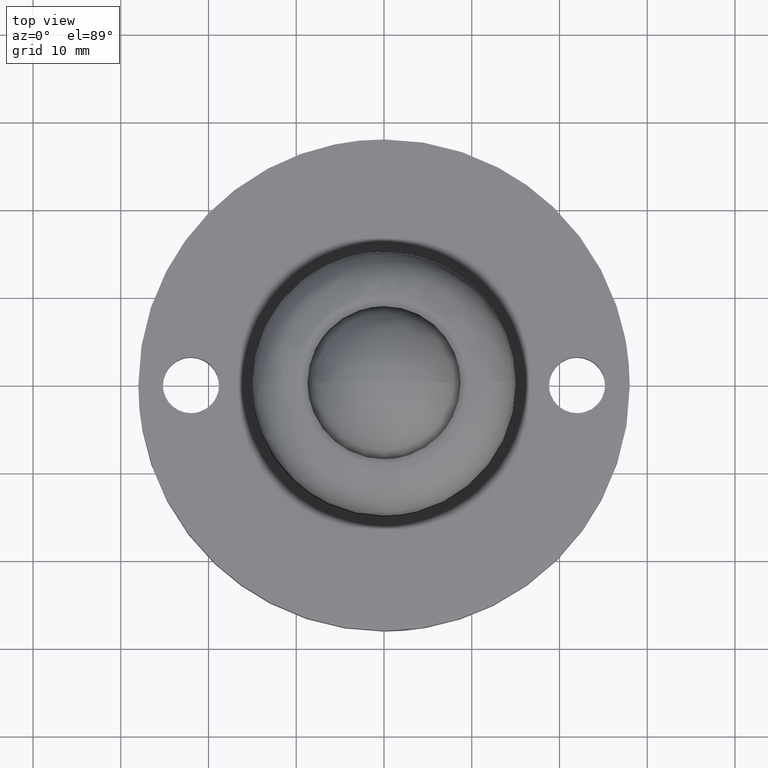
[diagram: clean part render]
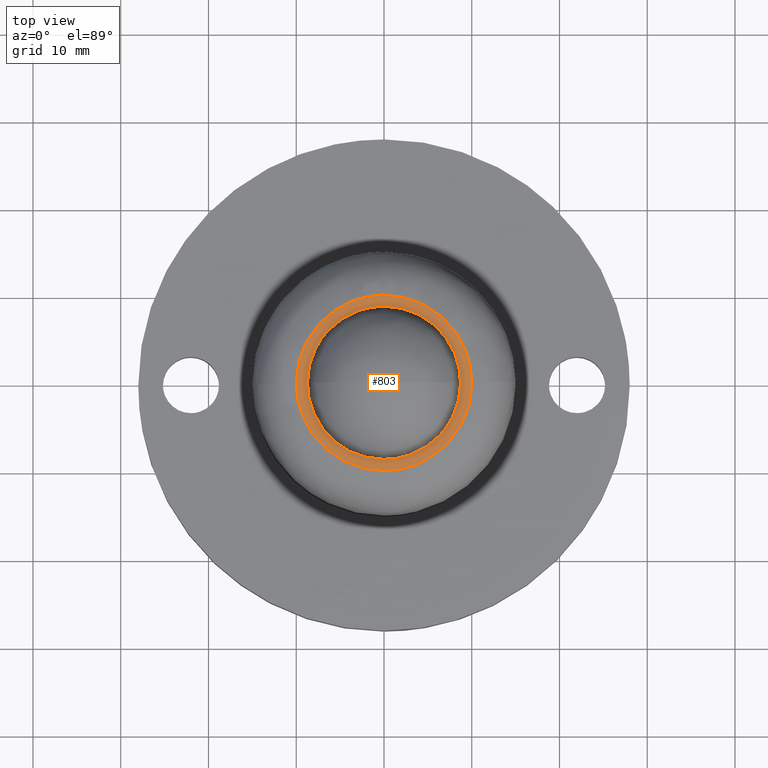
[diagram: same view with one face highlighted and labeled with its STEP entity id]
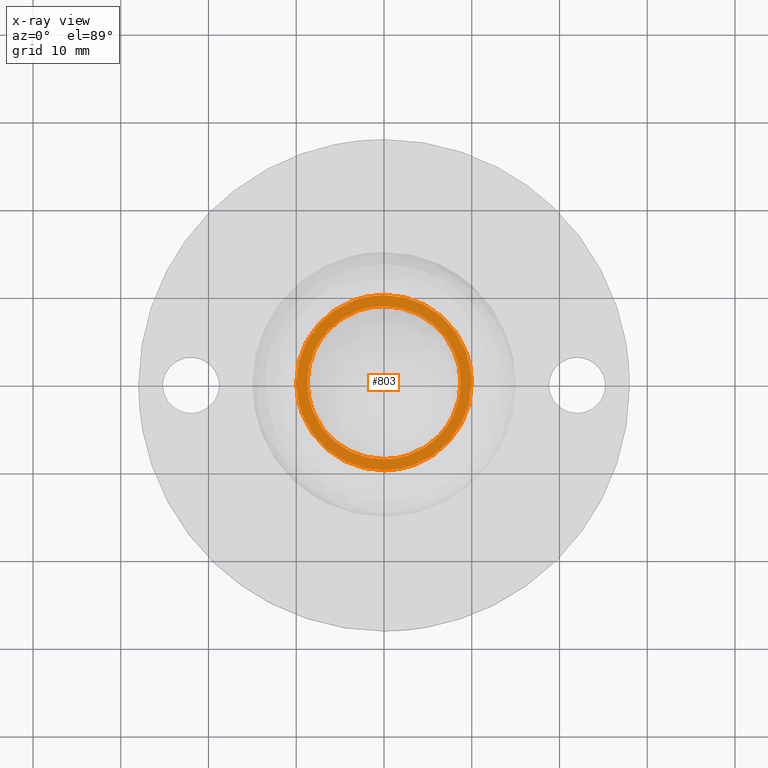
[diagram: x-ray of the same camera — body ghosted, the highlighted face saturated]
A machine part, top view. The second image highlights one B-rep face of the part: STEP entity #803.
The next image is the same camera in x-ray: the body ghosted, the highlighted face saturated — about 0% of this face is hidden behind the body in this view.
In plain terms, the highlighted face is a freeform B-spline surface patch.
Its self-contained STEP definition (entity closure, byte-faithful):
#578=CARTESIAN_POINT('',(6.327618083634519,-6.004685373669587,21.0));
#579=VERTEX_POINT('',#578);
#585=CARTESIAN_POINT('',(8.723244809129101,0.0,21.0));
#586=VERTEX_POINT('',#585);
#587=CARTESIAN_POINT('',(8.723244809129101,0.0,21.0));
#588=CARTESIAN_POINT('',(8.723332572390362,-0.586404979604794,21.000000000000028));
#589=CARTESIAN_POINT('',(8.621977730987004,-1.586697987719995,20.999999999999979));
#590=CARTESIAN_POINT('',(8.277166769243088,-2.818872504536087,21.000000000000021));
#591=CARTESIAN_POINT('',(7.842368233473377,-3.872254753578321,21.0));
#592=CARTESIAN_POINT('',(7.244876099076167,-4.925453301302267,20.999999999999979));
#593=CARTESIAN_POINT('',(6.660065241605389,-5.654416673220995,21.000000000000060));
#594=CARTESIAN_POINT('',(6.327618083634519,-6.004685373669587,21.0));
#595=B_SPLINE_CURVE_WITH_KNOTS('',3,(#587,#588,#589,#590,#591,#592,#593,#594),.UNSPECIFIED.,.F.,.U.,(4,1,1,1,1,4),(4.893895E-009,1.759204887722996,3.000998700661407,3.828850269999971,5.174131045733117,6.622885219076257),.UNSPECIFIED.);
#596=EDGE_CURVE('',#586,#579,#595,.T.);
#598=CARTESIAN_POINT('',(0.000000677488244,8.723244809129076,21.0));
#599=VERTEX_POINT('',#598);
#600=CARTESIAN_POINT('',(0.000000677488244,8.723244809129076,21.0));
#601=CARTESIAN_POINT('',(0.677993327680909,8.723399677154822,21.0));
#602=CARTESIAN_POINT('',(1.855485320217444,8.585242979676366,21.000000000000011));
#603=CARTESIAN_POINT('',(3.249787261453395,8.124592676812970,21.000000000000011));
#604=CARTESIAN_POINT('',(4.309302412451532,7.607449376546779,20.999999999999989));
#605=CARTESIAN_POINT('',(5.152049641195379,7.066517747434650,21.000000000000011));
#606=CARTESIAN_POINT('',(6.031598426387102,6.335606036334618,20.999999999999979));
#607=CARTESIAN_POINT('',(6.932664777246647,5.365711702309681,21.000000000000021));
#608=CARTESIAN_POINT('',(7.675681681773593,4.223631990809971,20.999999999999709));
#609=CARTESIAN_POINT('',(8.284155452857238,2.850877385782032,21.000000000001780));
#610=CARTESIAN_POINT('',(8.640560487426843,1.498707302535643,20.999999999994760));
#611=CARTESIAN_POINT('',(8.723264826576122,0.463876126279452,21.000000000007319));
#612=CARTESIAN_POINT('',(8.723244809129101,0.0,21.0));
#613=B_SPLINE_CURVE_WITH_KNOTS('',3,(#600,#601,#602,#603,#604,#605,#606,#607,#608,#609,#610,#611,#612),.UNSPECIFIED.,.F.,.U.,(4,1,1,1,1,1,1,1,1,1,4),(0.000114911370678,2.034065035391663,3.532769473584480,4.389176361845705,5.566737302561650,6.530181053071281,7.814751181571909,9.527562128002327,10.598072060405510,12.310886082825590,13.702519446926420),.UNSPECIFIED.);
#614=EDGE_CURVE('',#599,#586,#613,.T.);
#616=CARTESIAN_POINT('',(-6.327618083634496,6.004685373669567,21.0));
#617=VERTEX_POINT('',#616);
#618=CARTESIAN_POINT('',(-6.327618083634496,6.004685373669567,21.0));
#619=CARTESIAN_POINT('',(-5.959618270213363,6.392547860276998,21.000000000000011));
#620=CARTESIAN_POINT('',(-5.179844200784878,7.075870020467312,20.999999999999989));
#621=CARTESIAN_POINT('',(-4.038576107575969,7.763258624045899,21.0));
#622=CARTESIAN_POINT('',(-2.953051055601981,8.229595625163382,20.999999999999979));
#623=CARTESIAN_POINT('',(-1.677673289793570,8.608143465085682,21.000000000000210));
#624=CARTESIAN_POINT('',(-0.645286582443802,8.723366766376644,20.999999999999851));
#625=CARTESIAN_POINT('',(0.000000677488244,8.723244809129076,21.0));
#626=B_SPLINE_CURVE_WITH_KNOTS('',3,(#618,#619,#620,#621,#622,#623,#624,#625),.UNSPECIFIED.,.F.,.U.,(4,1,1,1,1,4),(0.000000013996203,1.603973144661284,3.097334097284104,3.982272836184685,5.143776597404555,7.079606919482530),.UNSPECIFIED.);
#627=EDGE_CURVE('',#617,#599,#626,.T.);
#657=CARTESIAN_POINT('',(-8.723244809129101,0.0,21.0));
#658=VERTEX_POINT('',#657);
#659=CARTESIAN_POINT('',(-8.723244809129101,0.0,21.0));
#660=CARTESIAN_POINT('',(-8.723333335380271,0.586405526445085,21.000000000000011));
#661=CARTESIAN_POINT('',(-8.621960136813584,1.586689007657569,20.999999999999979));
#662=CARTESIAN_POINT('',(-8.174766522205951,3.185251661157009,21.000000000000039));
#663=CARTESIAN_POINT('',(-7.455238342538174,4.649527068365380,20.999999999999972));
#664=CARTESIAN_POINT('',(-6.707556698060090,5.604381527280507,21.000000000000011));
#665=CARTESIAN_POINT('',(-6.327618083634496,6.004685373669567,21.0));
#666=B_SPLINE_CURVE_WITH_KNOTS('',3,(#659,#660,#661,#662,#663,#664,#665),.UNSPECIFIED.,.F.,.U.,(4,1,1,1,4),(4.894256E-009,1.759204887723136,3.000998700661433,4.967163915533622,6.622885219076245),.UNSPECIFIED.);
#667=EDGE_CURVE('',#658,#617,#666,.T.);
#669=CARTESIAN_POINT('',(-0.000000677488121,-8.723244809129074,21.0));
#670=VERTEX_POINT('',#669);
#671=CARTESIAN_POINT('',(-0.000000677488121,-8.723244809129074,21.0));
#672=CARTESIAN_POINT('',(-0.677997593391225,-8.723408748233753,20.999999999999989));
#673=CARTESIAN_POINT('',(-1.784111252685164,-8.593593179911899,21.000000000000039));
#674=CARTESIAN_POINT('',(-3.114369999449512,-8.172114868307807,20.999999999999979));
#675=CARTESIAN_POINT('',(-4.348726841347537,-7.606849268163112,20.999999999999879));
#676=CARTESIAN_POINT('',(-5.423340599801701,-6.888811543555472,21.000000000000050));
#677=CARTESIAN_POINT('',(-6.407173310033868,-5.951959022299822,20.999999999999929));
#678=CARTESIAN_POINT('',(-7.042197697601449,-5.178172637674443,21.000000000000199));
#679=CARTESIAN_POINT('',(-7.743685522432476,-4.100135583757065,20.999999999998970));
#680=CARTESIAN_POINT('',(-8.296514519899178,-2.852915367895867,21.000000000002981));
#681=CARTESIAN_POINT('',(-8.651906289429798,-1.355949118957813,20.999999999993591));
#682=CARTESIAN_POINT('',(-8.723275416893648,-0.463879590355535,21.000000000014278));
#683=CARTESIAN_POINT('',(-8.723244809129101,0.0,21.0));
#684=B_SPLINE_CURVE_WITH_KNOTS('',3,(#671,#672,#673,#674,#675,#676,#677,#678,#679,#680,#681,#682,#683),.UNSPECIFIED.,.F.,.U.,(4,1,1,1,1,1,1,1,1,1,4),(0.000114911370609,2.034065035391667,3.318668188879252,4.175074413055592,6.101987931380429,7.172458378674438,8.242952056606633,9.099358296362770,11.026276011511410,12.310886082825590,13.702519446926480),.UNSPECIFIED.);
#685=EDGE_CURVE('',#670,#658,#684,.T.);
#687=CARTESIAN_POINT('',(6.327618083634519,-6.004685373669587,21.0));
#688=CARTESIAN_POINT('',(6.048431361582376,-6.298907246129039,20.999999999999989));
#689=CARTESIAN_POINT('',(5.421670539238378,-6.873291077378390,21.000000000000011));
#690=CARTESIAN_POINT('',(4.381143408174281,-7.579071328345361,21.000000000000021));
#691=CARTESIAN_POINT('',(3.199696410004737,-8.150032788639377,20.999999999999950));
#692=CARTESIAN_POINT('',(1.751416441136674,-8.599914814410603,21.000000000000011));
#693=CARTESIAN_POINT('',(0.645286159092319,-8.723370802553383,21.000000000000011));
#694=CARTESIAN_POINT('',(-0.000000677488121,-8.723244809129074,21.0));
#695=B_SPLINE_CURVE_WITH_KNOTS('',3,(#687,#688,#689,#690,#691,#692,#693,#694),.UNSPECIFIED.,.F.,.U.,(4,1,1,1,1,4),(0.000000013997815,1.216802676635811,2.544239843362114,3.761037250918299,5.143776597404981,7.079606919482406),.UNSPECIFIED.);
#696=EDGE_CURVE('',#579,#670,#695,.T.);
#704=CARTESIAN_POINT('',(-10.998999961235899,-10.998783032706690,21.0));
#705=CARTESIAN_POINT('',(10.999000497677700,-10.998783032706690,21.0));
#706=CARTESIAN_POINT('',(-10.998999961235899,10.998783569137920,21.0));
#707=CARTESIAN_POINT('',(10.999000497677700,10.998783569137920,21.0));
#708=B_SPLINE_SURFACE_WITH_KNOTS('',1,1,((#704,#706),(#705,#707)),.UNSPECIFIED.,.F.,.F.,.U.,(2,2),(2,2),(0.0,21.998000458913602),(0.0,21.997566601844611),.UNSPECIFIED.);
#709=CARTESIAN_POINT('',(-9.999210443095326,-0.125660399110086,21.0));
#710=VERTEX_POINT('',#709);
#711=CARTESIAN_POINT('',(-9.999999999999799,0.0,21.0));
#712=VERTEX_POINT('',#711);
#713=CARTESIAN_POINT('',(-9.999210443095326,-0.125660399110086,21.0));
#714=CARTESIAN_POINT('',(-9.999999999999799,0.0,21.0));
#715=QUASI_UNIFORM_CURVE('',1,(#713,#714),.UNSPECIFIED.,.F.,.U.);
#716=EDGE_CURVE('',#710,#712,#715,.T.);
#717=ORIENTED_EDGE('',*,*,#716,.F.);
#718=CARTESIAN_POINT('',(0.062805054344614,-9.999802774315672,21.0));
#719=VERTEX_POINT('',#718);
#720=CARTESIAN_POINT('',(0.062805054344614,-9.999802774315672,21.0));
#721=CARTESIAN_POINT('',(-0.813177316599174,-10.005611807915180,21.000000000000011));
#722=CARTESIAN_POINT('',(-2.240137805728252,-9.825584995934372,20.999999999999961));
#723=CARTESIAN_POINT('',(-4.245028264484744,-9.118679754629701,21.000000000000121));
#724=CARTESIAN_POINT('',(-5.715664766248270,-8.266019202241598,20.999999999999680));
#725=CARTESIAN_POINT('',(-7.062549182978366,-7.139480367335418,21.000000000000711));
#726=CARTESIAN_POINT('',(-8.109148617273645,-5.935038905590992,20.999999999999570));
#727=CARTESIAN_POINT('',(-8.913272797161460,-4.606307559138471,21.000000000000551));
#728=CARTESIAN_POINT('',(-9.418327271868757,-3.423861902667085,20.999999999999819));
#729=CARTESIAN_POINT('',(-9.850949381412008,-1.977667107635396,21.000000000000131));
#730=CARTESIAN_POINT('',(-9.989891004483095,-0.879353541175013,20.999999999999929));
#731=CARTESIAN_POINT('',(-9.999210443095326,-0.125660399110086,21.0));
#732=B_SPLINE_CURVE_WITH_KNOTS('',3,(#720,#721,#722,#723,#724,#725,#726,#727,#728,#729,#730,#731),.UNSPECIFIED.,.F.,.U.,(4,1,1,1,1,1,1,1,1,4),(0.000000047510442,2.627890225191633,4.277968296809620,6.355845185855008,7.700348531167800,9.533736820823030,11.122706289565389,12.344987796700931,13.383924157297240,15.645129376216531),.UNSPECIFIED.);
#733=EDGE_CURVE('',#719,#710,#732,.T.);
#734=ORIENTED_EDGE('',*,*,#733,.F.);
#735=CARTESIAN_POINT('',(9.999999999999799,0.0,21.0));
#736=VERTEX_POINT('',#735);
#737=CARTESIAN_POINT('',(9.999999999999799,0.0,21.0));
#738=CARTESIAN_POINT('',(10.000003490425980,-0.427790089742249,21.000000000000011));
#739=CARTESIAN_POINT('',(9.933282028173654,-1.466732670302480,20.999999999999979));
#740=CARTESIAN_POINT('',(9.602922146305694,-2.944057803672374,21.000000000000050));
#741=CARTESIAN_POINT('',(8.971096966647487,-4.516926613015439,20.999999999999851));
#742=CARTESIAN_POINT('',(8.198310368174633,-5.794780078665727,21.000000000000171));
#743=CARTESIAN_POINT('',(7.216039979824836,-6.968749764925461,20.999999999999460));
#744=CARTESIAN_POINT('',(6.096127918859487,-7.984408327194137,21.000000000000281));
#745=CARTESIAN_POINT('',(4.634102803416174,-8.924843047394088,21.000000000000309));
#746=CARTESIAN_POINT('',(3.005242958625298,-9.591029212677146,21.000000000000089));
#747=CARTESIAN_POINT('',(1.447629749438859,-9.929589153354248,20.999999999999851));
#748=CARTESIAN_POINT('',(0.490586444072640,-9.997125353850032,21.000000000000089));
#749=CARTESIAN_POINT('',(0.062805054344614,-9.999802774315672,21.0));
#750=B_SPLINE_CURVE_WITH_KNOTS('',3,(#737,#738,#739,#740,#741,#742,#743,#744,#745,#746,#747,#748,#749),.UNSPECIFIED.,.F.,.U.,(4,1,1,1,1,1,1,1,1,1,4),(0.000000047499384,1.283376662270145,3.116807906655010,4.522440044570654,6.355866624291405,7.578154394551026,9.105963730929386,10.878289453026751,12.772833015318030,14.361809512010151,15.645182147335310),.UNSPECIFIED.);
#751=EDGE_CURVE('',#736,#719,#750,.T.);
#752=ORIENTED_EDGE('',*,*,#751,.F.);
#753=CARTESIAN_POINT('',(9.999210443095326,0.125660399110083,21.0));
#754=VERTEX_POINT('',#753);
#755=CARTESIAN_POINT('',(9.999210443095326,0.125660399110083,21.0));
#756=CARTESIAN_POINT('',(9.999999999999799,0.0,21.0));
#757=QUASI_UNIFORM_CURVE('',1,(#755,#756),.UNSPECIFIED.,.F.,.U.);
#758=EDGE_CURVE('',#754,#736,#757,.T.);
#759=ORIENTED_EDGE('',*,*,#758,.F.);
#760=CARTESIAN_POINT('',(-0.062805054344546,9.999802774315674,21.0));
#761=VERTEX_POINT('',#760);
#762=CARTESIAN_POINT('',(-0.062805054344546,9.999802774315674,21.0));
#763=CARTESIAN_POINT('',(0.629806769369434,10.004256048898929,21.000000000000050));
#764=CARTESIAN_POINT('',(1.954739761789263,9.874355390606846,20.999999999999961));
#765=CARTESIAN_POINT('',(3.559599928364766,9.384539974633416,21.000000000000060));
#766=CARTESIAN_POINT('',(4.886583630601037,8.755045594642315,20.999999999999819));
#767=CARTESIAN_POINT('',(5.936804926020118,8.084581579391534,21.000000000000441));
#768=CARTESIAN_POINT('',(7.089389092673732,7.108599762342404,20.999999999999300));
#769=CARTESIAN_POINT('',(8.015198136967820,6.043126206515268,21.000000000000799));
#770=CARTESIAN_POINT('',(8.922969821940416,4.613252066983266,20.999999999998980));
#771=CARTESIAN_POINT('',(9.502262230783014,3.257161836611547,21.000000000000409));
#772=CARTESIAN_POINT('',(9.897850387136932,1.652321186085972,21.000000000000011));
#773=CARTESIAN_POINT('',(9.992095291477996,0.696009379260859,20.999999999999940));
#774=CARTESIAN_POINT('',(9.999210443095326,0.125660399110083,21.0));
#775=B_SPLINE_CURVE_WITH_KNOTS('',3,(#762,#763,#764,#765,#766,#767,#768,#769,#770,#771,#772,#773,#774),.UNSPECIFIED.,.F.,.U.,(4,1,1,1,1,1,1,1,1,1,4),(0.000000047511287,2.077858580715612,3.972396518088729,5.011332138444669,6.478068084689799,7.700348531168805,9.533736820823506,10.694904153709260,12.772789932557060,13.933957265443320,15.645129376216470),.UNSPECIFIED.);
#776=EDGE_CURVE('',#761,#754,#775,.T.);
#777=ORIENTED_EDGE('',*,*,#776,.F.);
#778=CARTESIAN_POINT('',(-9.999999999999799,0.0,21.0));
#779=CARTESIAN_POINT('',(-10.000022602859961,0.509276758244206,21.000000000000039));
#780=CARTESIAN_POINT('',(-9.920469613534511,1.548201725415724,20.999999999999950));
#781=CARTESIAN_POINT('',(-9.520777843698665,3.238645438862484,21.000000000000011));
#782=CARTESIAN_POINT('',(-8.867531854045456,4.718939344449132,21.000000000000011));
#783=CARTESIAN_POINT('',(-7.920569671851411,6.172120719362959,20.999999999999979));
#784=CARTESIAN_POINT('',(-6.824491548096529,7.388688711664777,21.000000000000011));
#785=CARTESIAN_POINT('',(-5.555529804693159,8.355331278410310,20.999999999999901));
#786=CARTESIAN_POINT('',(-4.220650468407104,9.102846681338614,21.000000000000611));
#787=CARTESIAN_POINT('',(-2.485472207672074,9.775757081902563,20.999999999999179));
#788=CARTESIAN_POINT('',(-0.979535877629816,9.994398396938827,21.000000000000711));
#789=CARTESIAN_POINT('',(-0.062805054344546,9.999802774315674,21.0));
#790=B_SPLINE_CURVE_WITH_KNOTS('',3,(#778,#779,#780,#781,#782,#783,#784,#785,#786,#787,#788,#789),.UNSPECIFIED.,.F.,.U.,(4,1,1,1,1,1,1,1,1,4),(0.000000047512044,1.527830892360802,3.116807906664668,5.194699860073865,6.355866624298292,8.311477112554069,10.083803941509780,11.122743806496830,12.895061498253570,15.645182147335291),.UNSPECIFIED.);
#791=EDGE_CURVE('',#712,#761,#790,.T.);
#792=ORIENTED_EDGE('',*,*,#791,.F.);
#793=EDGE_LOOP('',(#717,#734,#752,#759,#777,#792));
#794=FACE_OUTER_BOUND('',#793,.T.);
#795=ORIENTED_EDGE('',*,*,#614,.T.);
#796=ORIENTED_EDGE('',*,*,#596,.T.);
#797=ORIENTED_EDGE('',*,*,#696,.T.);
#798=ORIENTED_EDGE('',*,*,#685,.T.);
#799=ORIENTED_EDGE('',*,*,#667,.T.);
#800=ORIENTED_EDGE('',*,*,#627,.T.);
#801=EDGE_LOOP('',(#795,#796,#797,#798,#799,#800));
#802=FACE_BOUND('',#801,.T.);
#803=ADVANCED_FACE('',(#794,#802),#708,.T.);